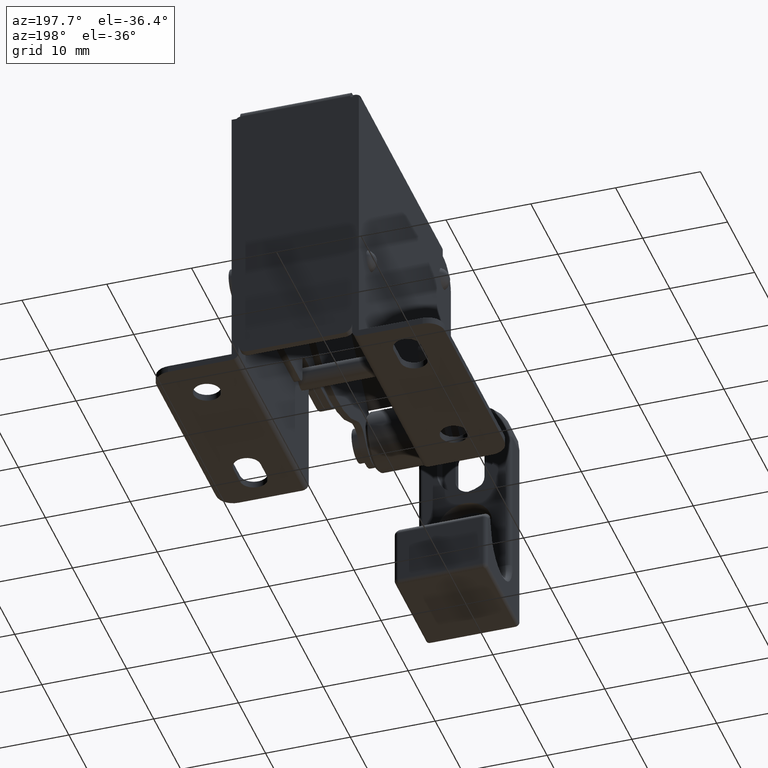
[diagram: clean part render]
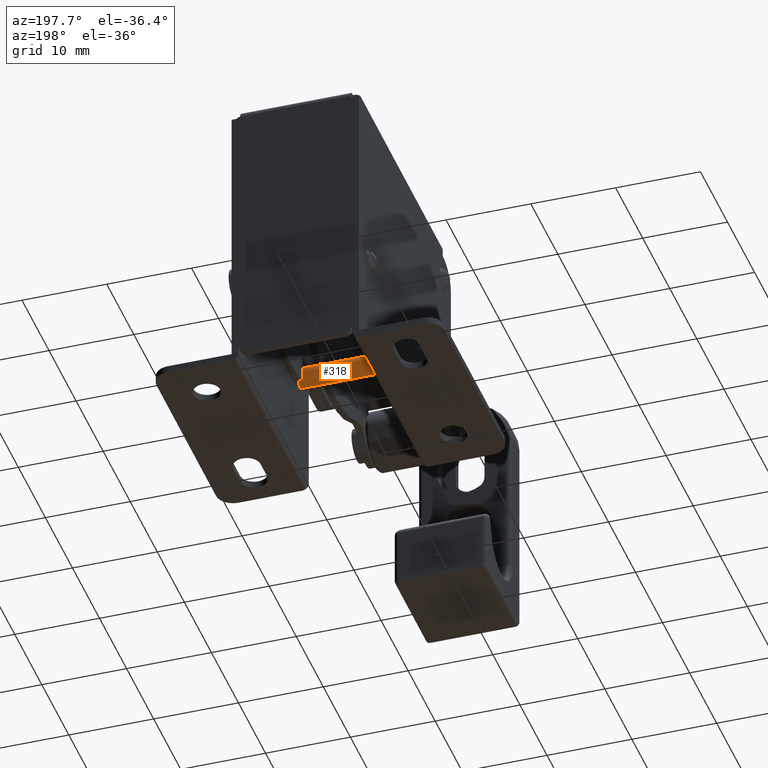
[diagram: same view with one face highlighted and labeled with its STEP entity id]
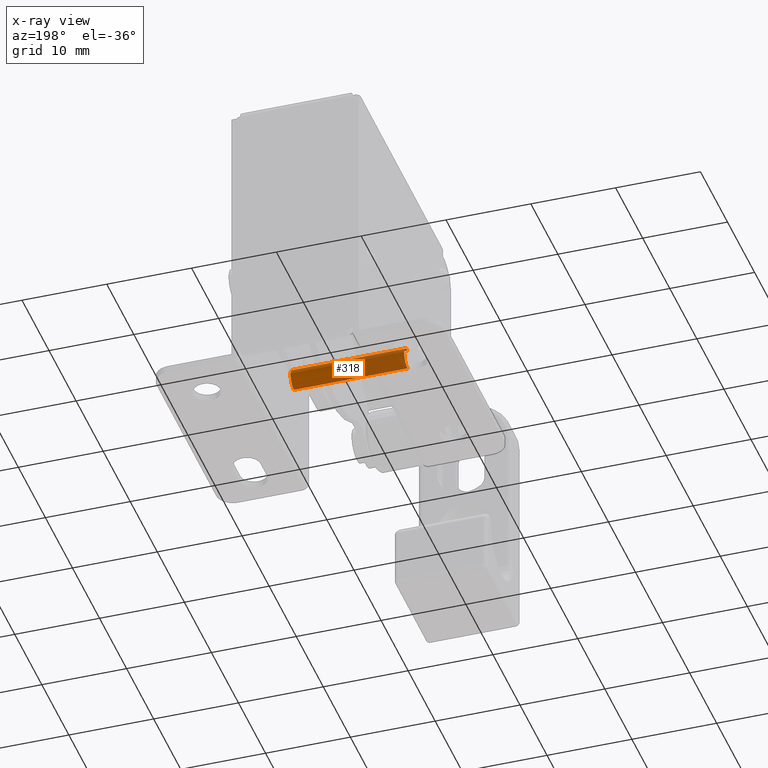
[diagram: x-ray of the same camera — body ghosted, the highlighted face saturated]
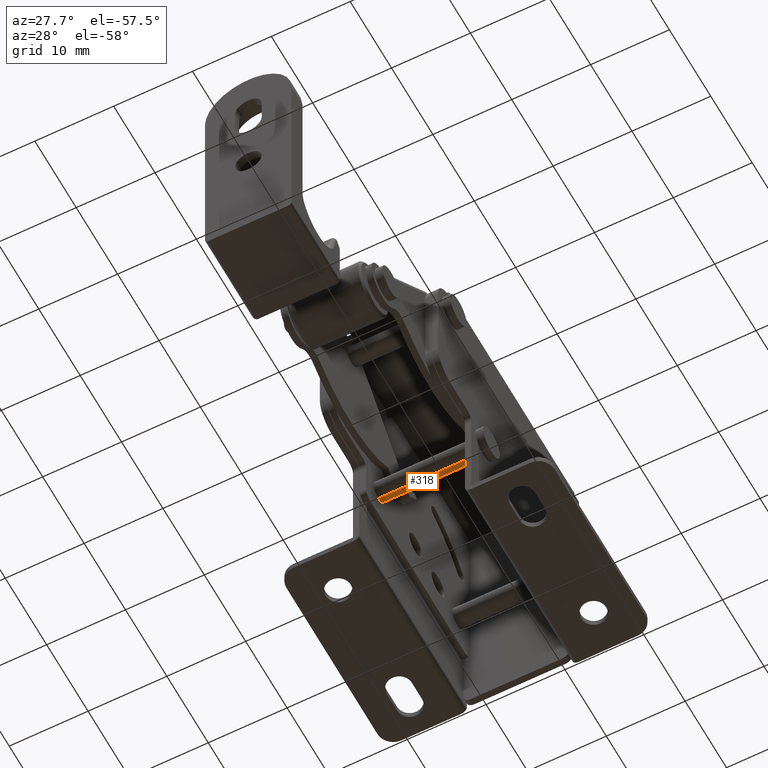
[diagram: same view with one face highlighted and labeled with its STEP entity id]
A machine part, auxiliary view. The second image highlights one B-rep face of the part: STEP entity #318.
The next image is the same camera in x-ray: the body ghosted, the highlighted face saturated — about 29% of this face is hidden behind the body in this view.
A second angle (auxiliary view) of the same face is appended — the face is thin or edge-on in the first view.
In plain terms, the highlighted cylindrical surface (edge-blend (fillet) strip) has radius 1.25 mm, axis along (1, 0, 0).
Its self-contained STEP definition (entity closure, byte-faithful):
#318=ADVANCED_FACE('',(#1487),#1486,.T.);
#1486=CYLINDRICAL_SURFACE('',#3918,1.25000000000E+00);
#1487=FACE_OUTER_BOUND('',#3919,.T.);
#3915=CARTESIAN_POINT('',(7.50000000000E+00,8.00000000000E+00,-1.65000000000E+01));
#3916=DIRECTION('',(1.00000000000E+00,0.00000000000E+00,-0.00000000000E+00));
#3917=DIRECTION('',(-0.00000000000E+00,-0.00000000000E+00,-1.00000000000E+00));
#3918=AXIS2_PLACEMENT_3D('',#3915,#3916,#3917);
#3919=EDGE_LOOP('',(#5582,#5583,#5584,#5585));
#5582=ORIENTED_EDGE('',*,*,#6731,.T.);
#5583=ORIENTED_EDGE('',*,*,#6773,.F.);
#5584=ORIENTED_EDGE('',*,*,#6724,.F.);
#5585=ORIENTED_EDGE('',*,*,#6774,.T.);
#6724=EDGE_CURVE('',#8712,#8713,#8714,.T.);
#6731=EDGE_CURVE('',#8755,#8754,#8762,.T.);
#6773=EDGE_CURVE('',#8713,#8754,#9025,.T.);
#6774=EDGE_CURVE('',#8712,#8755,#9031,.T.);
#8712=VERTEX_POINT('',#12946);
#8713=VERTEX_POINT('',#12947);
#8714=CIRCLE('',#12951,1.25000000000E+00);
#8754=VERTEX_POINT('',#12976);
#8755=VERTEX_POINT('',#12977);
#8762=CIRCLE('',#12985,1.25000000000E+00);
#9025=(BOUNDED_CURVE() B_SPLINE_CURVE(1,(#13102,#13103),.UNSPECIFIED.,.F.,.F.) B_SPLINE_CURVE_WITH_KNOTS((2,2),(8.33333343261E-02,9.16666667006E-01),.UNSPECIFIED.) CURVE() GEOMETRIC_REPRESENTATION_ITEM() RATIONAL_B_SPLINE_CURVE((1.00000000000E+00,1.00000000000E+00)) REPRESENTATION_ITEM('') );
#9031=(BOUNDED_CURVE() B_SPLINE_CURVE(1,(#13104,#13105),.UNSPECIFIED.,.F.,.F.) B_SPLINE_CURVE_WITH_KNOTS((2,2),(8.33333333333E-02,9.16666666667E-01),.UNSPECIFIED.) CURVE() GEOMETRIC_REPRESENTATION_ITEM() RATIONAL_B_SPLINE_CURVE((7.50000000000E-01,7.50000000000E-01)) REPRESENTATION_ITEM('') );
#12946=CARTESIAN_POINT('',(-5.90000000000E+00,8.00000000000E+00,-1.52500000000E+01));
#12947=CARTESIAN_POINT('',(-5.90000000000E+00,8.00000000000E+00,-1.77500000000E+01));
#12948=CARTESIAN_POINT('',(-5.90000000000E+00,8.00000000000E+00,-1.65000000000E+01));
#12949=DIRECTION('',(-1.00000000000E+00,0.00000000000E+00,0.00000000000E+00));
#12950=DIRECTION('',(0.00000000000E+00,-1.22460635382E-16,1.00000000000E+00));
#12951=AXIS2_PLACEMENT_3D('',#12948,#12949,#12950);
#12976=CARTESIAN_POINT('',(7.50000000000E+00,8.00000000000E+00,-1.77500000000E+01));
#12977=CARTESIAN_POINT('',(7.50000000000E+00,8.00000000000E+00,-1.52500000000E+01));
#12982=CARTESIAN_POINT('',(7.50000000000E+00,8.00000000000E+00,-1.65000000000E+01));
#12983=DIRECTION('',(-1.00000000000E+00,0.00000000000E+00,0.00000000000E+00));
#12984=DIRECTION('',(0.00000000000E+00,-1.22460635382E-16,1.00000000000E+00));
#12985=AXIS2_PLACEMENT_3D('',#12982,#12983,#12984);
#13102=CARTESIAN_POINT('',(-5.89999998404E+00,8.00000000000E+00,-1.77500000000E+01));
#13103=CARTESIAN_POINT('',(7.50000000546E+00,8.00000000000E+00,-1.77500000000E+01));
#13104=CARTESIAN_POINT('',(-5.90000000000E+00,8.00000000000E+00,-1.52500000000E+01));
#13105=CARTESIAN_POINT('',(7.50000000000E+00,8.00000000000E+00,-1.52500000000E+01));